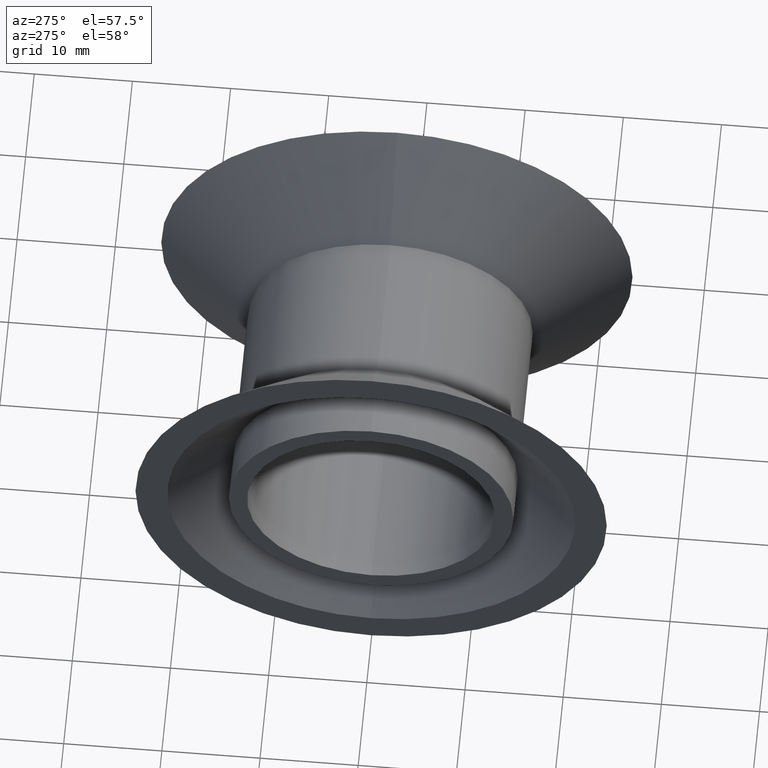
[diagram: clean part render]
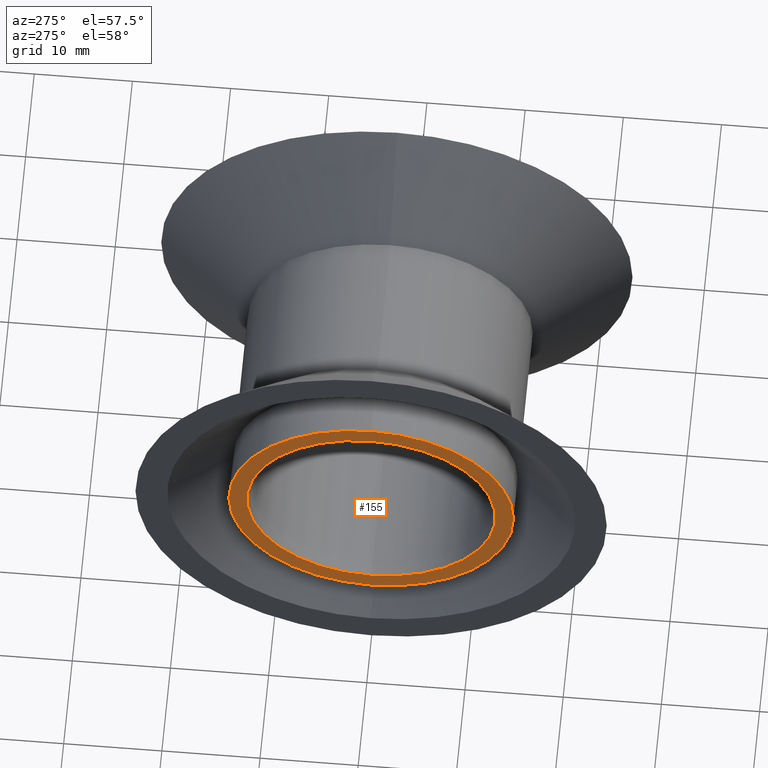
[diagram: same view with one face highlighted and labeled with its STEP entity id]
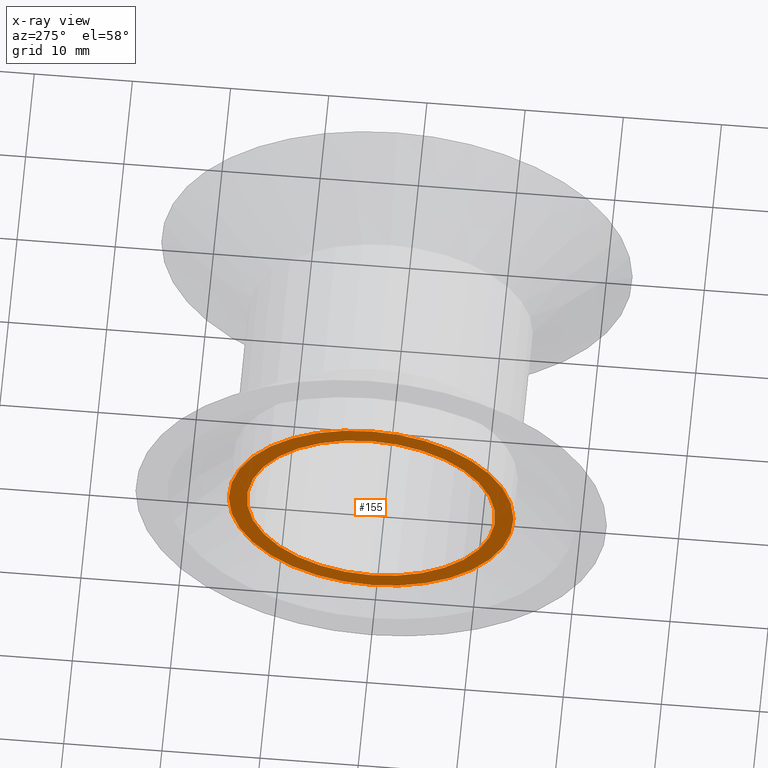
[diagram: x-ray of the same camera — body ghosted, the highlighted face saturated]
A machine part, auxiliary view. The second image highlights one B-rep face of the part: STEP entity #155.
The next image is the same camera in x-ray: the body ghosted, the highlighted face saturated — about 0% of this face is hidden behind the body in this view.
In plain terms, the highlighted planar face has unit normal (1, 0, 0).
Its self-contained STEP definition (entity closure, byte-faithful):
#30 = ORIENTED_EDGE ( 'NONE', *, *, #198, .T. ) ;
#60 = CARTESIAN_POINT ( 'NONE',  ( -15.00000000000000000, 0.0000000000000000000, 0.0000000000000000000 ) ) ;
#72 = VERTEX_POINT ( 'NONE', #535 ) ;
#73 = CARTESIAN_POINT ( 'NONE',  ( -15.00000000000000000, 1.775737858763660832E-15, -14.49999999999998934 ) ) ;
#81 = PLANE ( 'NONE',  #435 ) ;
#97 = DIRECTION ( 'NONE',  ( 0.0000000000000000000, 0.0000000000000000000, 1.000000000000000000 ) ) ;
#100 = EDGE_LOOP ( 'NONE', ( #434, #30 ) ) ;
#118 = CARTESIAN_POINT ( 'NONE',  ( -15.00000000000000000, 0.0000000000000000000, 0.0000000000000000000 ) ) ;
#120 = CARTESIAN_POINT ( 'NONE',  ( -15.00000000000000000, 0.0000000000000000000, 0.0000000000000000000 ) ) ;
#154 = DIRECTION ( 'NONE',  ( 0.0000000000000000000, 0.0000000000000000000, 1.000000000000000000 ) ) ;
#155 = ADVANCED_FACE ( 'NONE', ( #411, #389 ), #81, .F. ) ;
#162 = CIRCLE ( 'NONE', #297, 12.65000000000000036 ) ;
#166 = EDGE_LOOP ( 'NONE', ( #192, #280 ) ) ;
#171 = AXIS2_PLACEMENT_3D ( 'NONE', #60, #375, #154 ) ;
#179 = DIRECTION ( 'NONE',  ( 0.0000000000000000000, 0.0000000000000000000, -1.000000000000000000 ) ) ;
#192 = ORIENTED_EDGE ( 'NONE', *, *, #446, .F. ) ;
#198 = EDGE_CURVE ( 'NONE', #507, #72, #527, .T. ) ;
#218 = EDGE_CURVE ( 'NONE', #448, #572, #162, .T. ) ;
#230 = AXIS2_PLACEMENT_3D ( 'NONE', #444, #480, #385 ) ;
#258 = DIRECTION ( 'NONE',  ( 1.000000000000000000, 0.0000000000000000000, 0.0000000000000000000 ) ) ;
#280 = ORIENTED_EDGE ( 'NONE', *, *, #218, .F. ) ;
#292 = CARTESIAN_POINT ( 'NONE',  ( -15.00000000000000000, 0.0000000000000000000, 12.65000000000000036 ) ) ;
#297 = AXIS2_PLACEMENT_3D ( 'NONE', #118, #436, #97 ) ;
#330 = CIRCLE ( 'NONE', #381, 14.49999999999998934 ) ;
#355 = CARTESIAN_POINT ( 'NONE',  ( -15.00000000000000000, 12.65000000000000036, 0.0000000000000000000 ) ) ;
#375 = DIRECTION ( 'NONE',  ( -1.000000000000000000, -0.0000000000000000000, -0.0000000000000000000 ) ) ;
#381 = AXIS2_PLACEMENT_3D ( 'NONE', #120, #437, #516 ) ;
#385 = DIRECTION ( 'NONE',  ( 0.0000000000000000000, 0.0000000000000000000, 1.000000000000000000 ) ) ;
#389 = FACE_OUTER_BOUND ( 'NONE', #100, .T. ) ;
#411 = FACE_BOUND ( 'NONE', #166, .T. ) ;
#434 = ORIENTED_EDGE ( 'NONE', *, *, #530, .T. ) ;
#435 = AXIS2_PLACEMENT_3D ( 'NONE', #355, #258, #179 ) ;
#436 = DIRECTION ( 'NONE',  ( -1.000000000000000000, -0.0000000000000000000, -0.0000000000000000000 ) ) ;
#437 = DIRECTION ( 'NONE',  ( -1.000000000000000000, -0.0000000000000000000, -0.0000000000000000000 ) ) ;
#444 = CARTESIAN_POINT ( 'NONE',  ( -15.00000000000000000, 0.0000000000000000000, 0.0000000000000000000 ) ) ;
#446 = EDGE_CURVE ( 'NONE', #572, #448, #450, .T. ) ;
#448 = VERTEX_POINT ( 'NONE', #502 ) ;
#450 = CIRCLE ( 'NONE', #171, 12.65000000000000036 ) ;
#480 = DIRECTION ( 'NONE',  ( -1.000000000000000000, -0.0000000000000000000, -0.0000000000000000000 ) ) ;
#502 = CARTESIAN_POINT ( 'NONE',  ( -15.00000000000000000, 1.549178200921401754E-15, -12.65000000000000036 ) ) ;
#507 = VERTEX_POINT ( 'NONE', #73 ) ;
#516 = DIRECTION ( 'NONE',  ( 0.0000000000000000000, 0.0000000000000000000, 1.000000000000000000 ) ) ;
#527 = CIRCLE ( 'NONE', #230, 14.49999999999998934 ) ;
#530 = EDGE_CURVE ( 'NONE', #72, #507, #330, .T. ) ;
#535 = CARTESIAN_POINT ( 'NONE',  ( -15.00000000000000000, 0.0000000000000000000, 14.49999999999998934 ) ) ;
#572 = VERTEX_POINT ( 'NONE', #292 ) ;